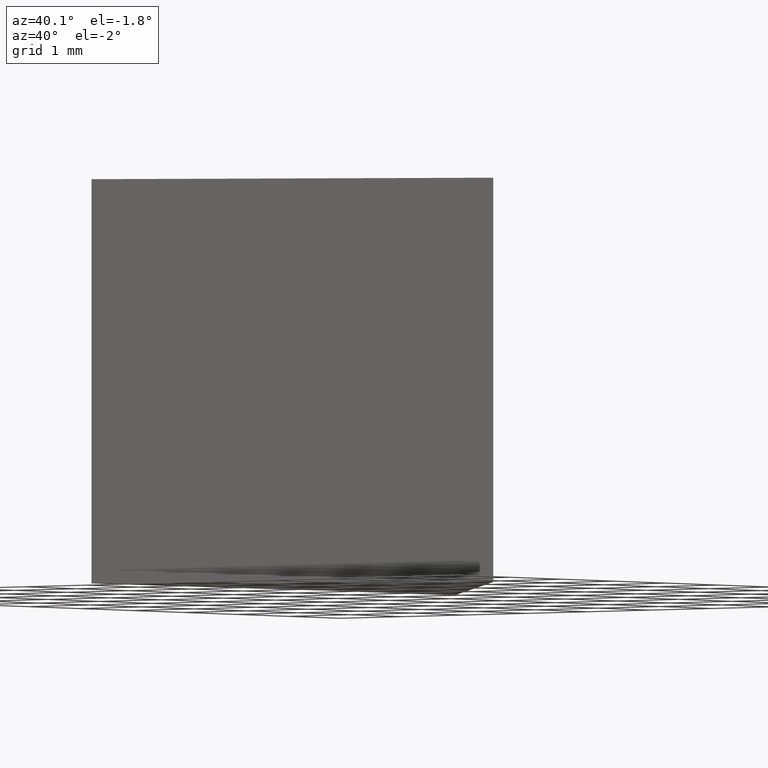
[diagram: clean part render]
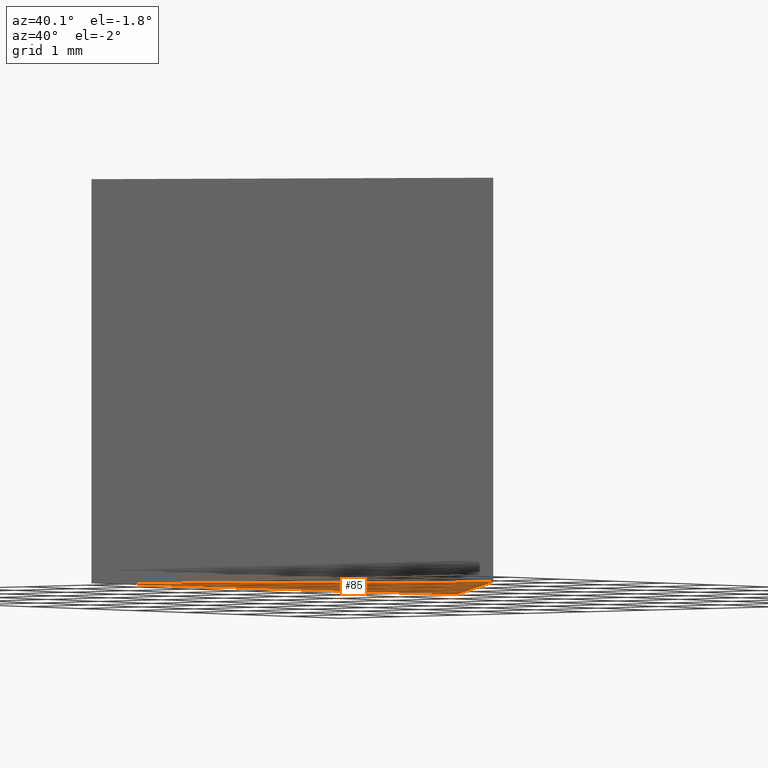
[diagram: same view with one face highlighted and labeled with its STEP entity id]
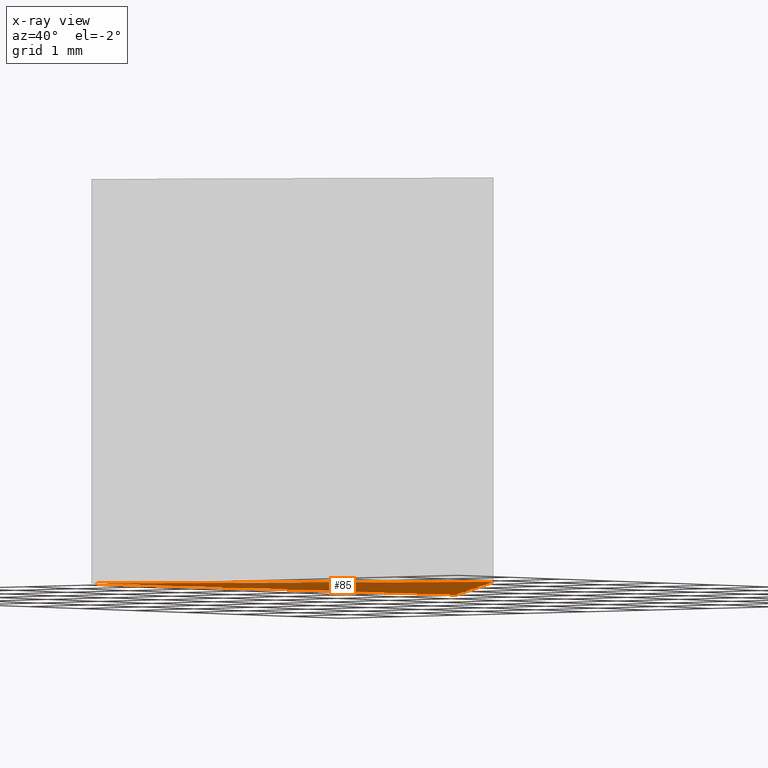
[diagram: x-ray of the same camera — body ghosted, the highlighted face saturated]
A machine part, auxiliary view. The second image highlights one B-rep face of the part: STEP entity #85.
The next image is the same camera in x-ray: the body ghosted, the highlighted face saturated — about 0% of this face is hidden behind the body in this view.
In plain terms, the highlighted planar face has unit normal (0, 0, -1).
Its self-contained STEP definition (entity closure, byte-faithful):
#8 = AXIS2_PLACEMENT_3D ( 'NONE', #136, #60, #151 ) ;
#17 = DIRECTION ( 'NONE',  ( -0.7109728236074620600, 0.7032194850056648900, 0.0000000000000000000 ) ) ;
#28 = VECTOR ( 'NONE', #61, 1000.000000000000000 ) ;
#35 = CARTESIAN_POINT ( 'NONE',  ( 4.857370913066168000, 3.604478735041047000, 0.0000000000000000000 ) ) ;
#57 = VERTEX_POINT ( 'NONE', #88 ) ;
#60 = DIRECTION ( 'NONE',  ( 0.0000000000000000000, 0.0000000000000000000, -1.000000000000000000 ) ) ;
#61 = DIRECTION ( 'NONE',  ( 0.8342399877260263700, 0.5514015260034012000, -0.0000000000000000000 ) ) ;
#70 = FACE_OUTER_BOUND ( 'NONE', #108, .T. ) ;
#71 = VECTOR ( 'NONE', #17, 1000.000000000000100 ) ;
#85 = ADVANCED_FACE ( 'NONE', ( #70 ), #110, .T. ) ;
#86 = ORIENTED_EDGE ( 'NONE', *, *, #123, .F. ) ;
#88 = CARTESIAN_POINT ( 'NONE',  ( 1.302506795028856200, 7.120576160069372700, 0.0000000000000000000 ) ) ;
#97 = CARTESIAN_POINT ( 'NONE',  ( 0.6861709744360347000, 0.8474711050240408800, 0.0000000000000000000 ) ) ;
#101 = VECTOR ( 'NONE', #138, 1000.000000000000000 ) ;
#105 = CARTESIAN_POINT ( 'NONE',  ( 0.6861709744360347000, 0.8474711050240408800, 0.0000000000000000000 ) ) ;
#106 = EDGE_CURVE ( 'NONE', #149, #57, #107, .T. ) ;
#107 = LINE ( 'NONE', #165, #71 ) ;
#108 = EDGE_LOOP ( 'NONE', ( #144, #86, #158 ) ) ;
#109 = LINE ( 'NONE', #112, #28 ) ;
#110 = PLANE ( 'NONE',  #8 ) ;
#112 = CARTESIAN_POINT ( 'NONE',  ( 4.857370913066168000, 3.604478735041047000, 0.0000000000000000000 ) ) ;
#123 = EDGE_CURVE ( 'NONE', #57, #164, #135, .T. ) ;
#135 = LINE ( 'NONE', #97, #101 ) ;
#136 = CARTESIAN_POINT ( 'NONE',  ( 0.0000000000000000000, 0.0000000000000000000, 0.0000000000000000000 ) ) ;
#138 = DIRECTION ( 'NONE',  ( -0.09777970958415417600, -0.9952080829623715100, -0.0000000000000000000 ) ) ;
#140 = EDGE_CURVE ( 'NONE', #164, #149, #109, .T. ) ;
#144 = ORIENTED_EDGE ( 'NONE', *, *, #140, .F. ) ;
#149 = VERTEX_POINT ( 'NONE', #35 ) ;
#151 = DIRECTION ( 'NONE',  ( -1.000000000000000000, 0.0000000000000000000, 0.0000000000000000000 ) ) ;
#158 = ORIENTED_EDGE ( 'NONE', *, *, #106, .F. ) ;
#164 = VERTEX_POINT ( 'NONE', #105 ) ;
#165 = CARTESIAN_POINT ( 'NONE',  ( 4.857370913066168000, 3.604478735041047000, 0.0000000000000000000 ) ) ;